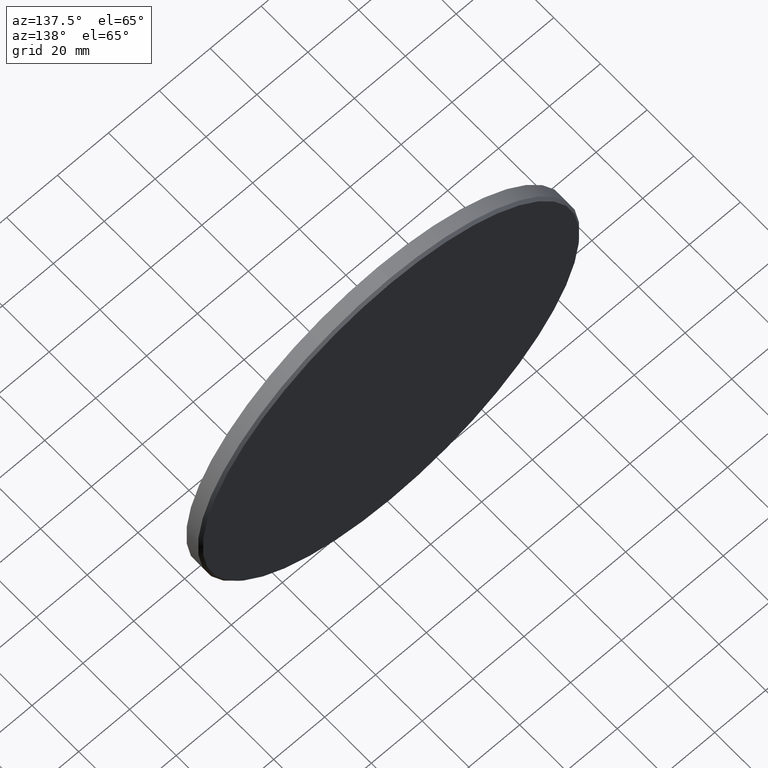
[diagram: clean part render]
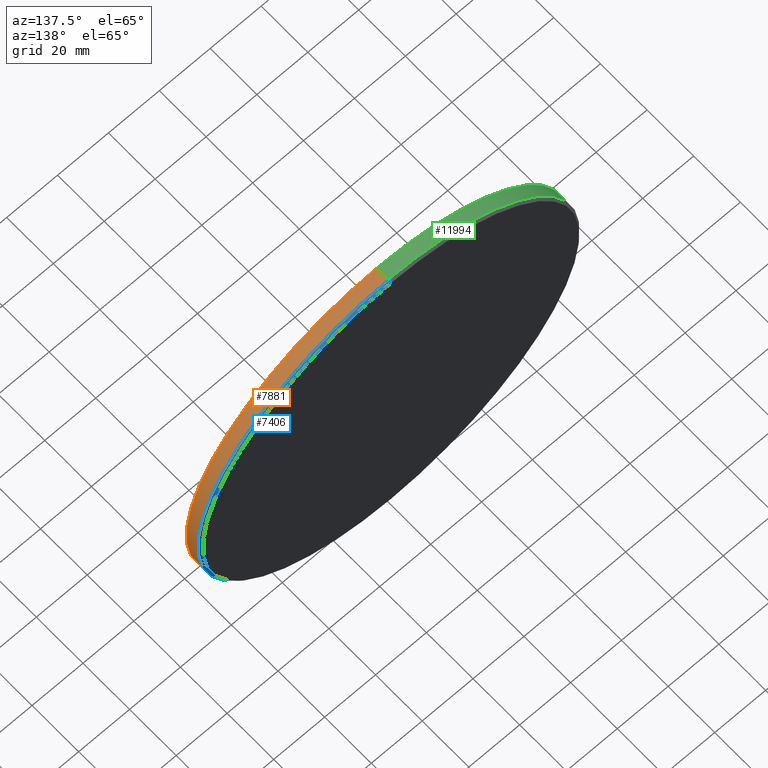
[diagram: same view with three faces highlighted in distinct colors, each labeled with its STEP entity id]
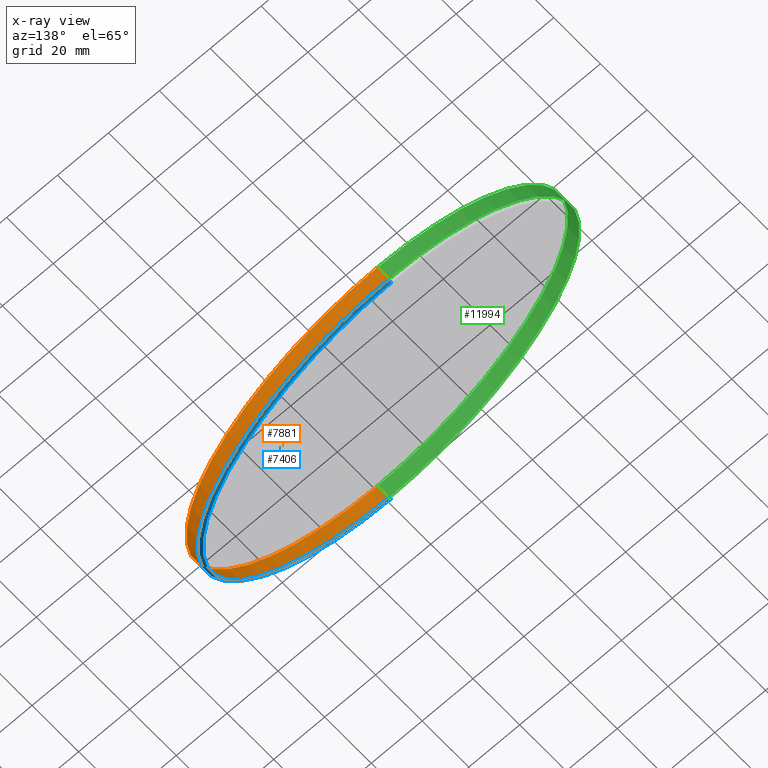
[diagram: x-ray of the same camera — body ghosted, the three highlighted faces saturated]
A machine part, auxiliary view with three faces highlighted in distinct colors.
The next image is the same camera in x-ray (body ghosted, the three faces saturated) — at least one of them is partly hidden behind the body in this view.
Their STEP definitions:

[orange] entity #7881 — the highlighted cylindrical surface (partial cylindrical patch) has radius 75 mm, axis along (-0, -1, -0).
#31 = DIRECTION ( 'NONE',  ( -0.000000000000000000, -1.000000000000000000, -0.000000000000000000 ) ) ;
#159 = ORIENTED_EDGE ( 'NONE', *, *, #959, .T. ) ;
#386 = CIRCLE ( 'NONE', #1774, 75.00000000000001421 ) ;
#724 = CARTESIAN_POINT ( 'NONE',  ( 0.000000000000000000, -3.000000000000000000, -75.00000000000001421 ) ) ;
#959 = EDGE_CURVE ( 'NONE', #5830, #2016, #386, .T. ) ;
#1470 = ORIENTED_EDGE ( 'NONE', *, *, #4376, .T. ) ;
#1581 = CARTESIAN_POINT ( 'NONE',  ( 0.000000000000000000, -3.000000000000000000, 0.000000000000000000 ) ) ;
#1774 = AXIS2_PLACEMENT_3D ( 'NONE', #11794, #5338, #8551 ) ;
#2016 = VERTEX_POINT ( 'NONE', #3464 ) ;
#2090 = LINE ( 'NONE', #3948, #9688 ) ;
#3177 = CARTESIAN_POINT ( 'NONE',  ( 0.000000000000000000, 3.000000000000000000, 0.000000000000000000 ) ) ;
#3464 = CARTESIAN_POINT ( 'NONE',  ( 9.184850993605150311E-15, 2.000000000000012879, 75.00000000000001421 ) ) ;
#3948 = CARTESIAN_POINT ( 'NONE',  ( 0.000000000000000000, 3.000000000000000000, -75.00000000000001421 ) ) ;
#4249 = AXIS2_PLACEMENT_3D ( 'NONE', #3177, #31, #9844 ) ;
#4376 = EDGE_CURVE ( 'NONE', #7229, #4633, #10716, .T. ) ;
#4633 = VERTEX_POINT ( 'NONE', #724 ) ;
#4654 = EDGE_CURVE ( 'NONE', #5830, #4633, #2090, .T. ) ;
#5338 = DIRECTION ( 'NONE',  ( 0.000000000000000000, -1.000000000000000000, 0.000000000000000000 ) ) ;
#5355 = AXIS2_PLACEMENT_3D ( 'NONE', #1581, #10463, #8237 ) ;
#5830 = VERTEX_POINT ( 'NONE', #11074 ) ;
#7229 = VERTEX_POINT ( 'NONE', #13252 ) ;
#7459 = ORIENTED_EDGE ( 'NONE', *, *, #8628, .T. ) ;
#7881 = ADVANCED_FACE ( 'NONE', ( #11885 ), #7903, .T. ) ;
#7903 = CYLINDRICAL_SURFACE ( 'NONE', #4249, 75.00000000000001421 ) ;
#8237 = DIRECTION ( 'NONE',  ( 0.000000000000000000, 0.000000000000000000, 1.000000000000000000 ) ) ;
#8551 = DIRECTION ( 'NONE',  ( 0.000000000000000000, 0.000000000000000000, 1.000000000000000000 ) ) ;
#8628 = EDGE_CURVE ( 'NONE', #2016, #7229, #10065, .T. ) ;
#8884 = CARTESIAN_POINT ( 'NONE',  ( 9.184850993605150311E-15, 3.000000000000000000, 75.00000000000001421 ) ) ;
#9013 = VECTOR ( 'NONE', #13344, 1000.000000000000000 ) ;
#9688 = VECTOR ( 'NONE', #12672, 1000.000000000000000 ) ;
#9844 = DIRECTION ( 'NONE',  ( 0.000000000000000000, 0.000000000000000000, -1.000000000000000000 ) ) ;
#10065 = LINE ( 'NONE', #8884, #9013 ) ;
#10269 = EDGE_LOOP ( 'NONE', ( #159, #7459, #1470, #12878 ) ) ;
#10463 = DIRECTION ( 'NONE',  ( 0.000000000000000000, 1.000000000000000000, 0.000000000000000000 ) ) ;
#10716 = CIRCLE ( 'NONE', #5355, 75.00000000000001421 ) ;
#11074 = CARTESIAN_POINT ( 'NONE',  ( 0.000000000000000000, 2.000000000000012879, -75.00000000000001421 ) ) ;
#11794 = CARTESIAN_POINT ( 'NONE',  ( 0.000000000000000000, 2.000000000000012879, 0.000000000000000000 ) ) ;
#11885 = FACE_OUTER_BOUND ( 'NONE', #10269, .T. ) ;
#12672 = DIRECTION ( 'NONE',  ( -0.000000000000000000, -1.000000000000000000, -0.000000000000000000 ) ) ;
#12878 = ORIENTED_EDGE ( 'NONE', *, *, #4654, .F. ) ;
#13252 = CARTESIAN_POINT ( 'NONE',  ( 9.184850993605150311E-15, -3.000000000000000000, 75.00000000000001421 ) ) ;
#13344 = DIRECTION ( 'NONE',  ( -0.000000000000000000, -1.000000000000000000, -0.000000000000000000 ) ) ;

[blue] entity #7406 — the highlighted conical surface has half-angle 45 deg.
#191 = DIRECTION ( 'NONE',  ( 0.000000000000000000, -1.000000000000000000, 0.000000000000000000 ) ) ;
#386 = CIRCLE ( 'NONE', #1774, 75.00000000000001421 ) ;
#564 = CARTESIAN_POINT ( 'NONE',  ( 9.123618653647782737E-15, 3.000000000000000000, 74.00000000000001421 ) ) ;
#959 = EDGE_CURVE ( 'NONE', #5830, #2016, #386, .T. ) ;
#1026 = CARTESIAN_POINT ( 'NONE',  ( 0.000000000000000000, 3.000000000000000000, -74.00000000000001421 ) ) ;
#1263 = CARTESIAN_POINT ( 'NONE',  ( 0.000000000000000000, 3.000000000000000000, 0.000000000000000000 ) ) ;
#1774 = AXIS2_PLACEMENT_3D ( 'NONE', #11794, #5338, #8551 ) ;
#2016 = VERTEX_POINT ( 'NONE', #3464 ) ;
#3195 = DIRECTION ( 'NONE',  ( 0.000000000000000000, -0.7071067811865426878, -0.7071067811865524577 ) ) ;
#3218 = ORIENTED_EDGE ( 'NONE', *, *, #12882, .F. ) ;
#3464 = CARTESIAN_POINT ( 'NONE',  ( 9.184850993605150311E-15, 2.000000000000012879, 75.00000000000001421 ) ) ;
#3575 = VECTOR ( 'NONE', #3195, 1000.000000000000000 ) ;
#3578 = DIRECTION ( 'NONE',  ( 0.000000000000000000, 1.000000000000000000, 0.000000000000000000 ) ) ;
#3859 = EDGE_LOOP ( 'NONE', ( #4717, #8539, #7892, #3218 ) ) ;
#4717 = ORIENTED_EDGE ( 'NONE', *, *, #14315, .F. ) ;
#5338 = DIRECTION ( 'NONE',  ( 0.000000000000000000, -1.000000000000000000, 0.000000000000000000 ) ) ;
#5622 = CARTESIAN_POINT ( 'NONE',  ( 0.000000000000000000, 3.000000000000000000, 0.000000000000000000 ) ) ;
#5678 = CONICAL_SURFACE ( 'NONE', #13611, 74.00000000000001421, 0.7853981633974552734 ) ;
#5684 = VECTOR ( 'NONE', #13641, 1000.000000000000000 ) ;
#5830 = VERTEX_POINT ( 'NONE', #11074 ) ;
#6859 = DIRECTION ( 'NONE',  ( 0.000000000000000000, 0.000000000000000000, -1.000000000000000000 ) ) ;
#7380 = FACE_OUTER_BOUND ( 'NONE', #3859, .T. ) ;
#7406 = ADVANCED_FACE ( 'NONE', ( #7380 ), #5678, .T. ) ;
#7892 = ORIENTED_EDGE ( 'NONE', *, *, #959, .F. ) ;
#8539 = ORIENTED_EDGE ( 'NONE', *, *, #11484, .T. ) ;
#8551 = DIRECTION ( 'NONE',  ( 0.000000000000000000, 0.000000000000000000, 1.000000000000000000 ) ) ;
#9088 = DIRECTION ( 'NONE',  ( 0.000000000000000000, 0.000000000000000000, 1.000000000000000000 ) ) ;
#9132 = LINE ( 'NONE', #13680, #5684 ) ;
#9172 = AXIS2_PLACEMENT_3D ( 'NONE', #5622, #3578, #9088 ) ;
#9570 = VERTEX_POINT ( 'NONE', #564 ) ;
#9806 = LINE ( 'NONE', #1026, #3575 ) ;
#11074 = CARTESIAN_POINT ( 'NONE',  ( 0.000000000000000000, 2.000000000000012879, -75.00000000000001421 ) ) ;
#11409 = CARTESIAN_POINT ( 'NONE',  ( 0.000000000000000000, 3.000000000000000000, -74.00000000000001421 ) ) ;
#11484 = EDGE_CURVE ( 'NONE', #9570, #2016, #9132, .T. ) ;
#11794 = CARTESIAN_POINT ( 'NONE',  ( 0.000000000000000000, 2.000000000000012879, 0.000000000000000000 ) ) ;
#12882 = EDGE_CURVE ( 'NONE', #13223, #5830, #9806, .T. ) ;
#13223 = VERTEX_POINT ( 'NONE', #11409 ) ;
#13611 = AXIS2_PLACEMENT_3D ( 'NONE', #1263, #191, #6859 ) ;
#13641 = DIRECTION ( 'NONE',  ( 8.659560562354994488E-17, -0.7071067811865426878, 0.7071067811865524577 ) ) ;
#13680 = CARTESIAN_POINT ( 'NONE',  ( 9.062386313690415163E-15, 3.000000000000000000, 74.00000000000001421 ) ) ;
#14283 = CIRCLE ( 'NONE', #9172, 74.00000000000001421 ) ;
#14315 = EDGE_CURVE ( 'NONE', #9570, #13223, #14283, .T. ) ;

[green] entity #11994 — the highlighted cylindrical surface (partial cylindrical patch) has radius 75 mm, axis along (-0, -1, -0).
#201 = CARTESIAN_POINT ( 'NONE',  ( 0.000000000000000000, -3.000000000000000000, 0.000000000000000000 ) ) ;
#327 = DIRECTION ( 'NONE',  ( -0.000000000000000000, -1.000000000000000000, -0.000000000000000000 ) ) ;
#724 = CARTESIAN_POINT ( 'NONE',  ( 0.000000000000000000, -3.000000000000000000, -75.00000000000001421 ) ) ;
#2016 = VERTEX_POINT ( 'NONE', #3464 ) ;
#2090 = LINE ( 'NONE', #3948, #9688 ) ;
#2526 = AXIS2_PLACEMENT_3D ( 'NONE', #13177, #7810, #8768 ) ;
#3274 = AXIS2_PLACEMENT_3D ( 'NONE', #12471, #327, #8051 ) ;
#3464 = CARTESIAN_POINT ( 'NONE',  ( 9.184850993605150311E-15, 2.000000000000012879, 75.00000000000001421 ) ) ;
#3615 = AXIS2_PLACEMENT_3D ( 'NONE', #201, #11376, #12440 ) ;
#3948 = CARTESIAN_POINT ( 'NONE',  ( 0.000000000000000000, 3.000000000000000000, -75.00000000000001421 ) ) ;
#4633 = VERTEX_POINT ( 'NONE', #724 ) ;
#4654 = EDGE_CURVE ( 'NONE', #5830, #4633, #2090, .T. ) ;
#5593 = ORIENTED_EDGE ( 'NONE', *, *, #8628, .F. ) ;
#5830 = VERTEX_POINT ( 'NONE', #11074 ) ;
#6657 = ORIENTED_EDGE ( 'NONE', *, *, #10593, .T. ) ;
#7229 = VERTEX_POINT ( 'NONE', #13252 ) ;
#7810 = DIRECTION ( 'NONE',  ( 0.000000000000000000, -1.000000000000000000, 0.000000000000000000 ) ) ;
#8051 = DIRECTION ( 'NONE',  ( 0.000000000000000000, 0.000000000000000000, -1.000000000000000000 ) ) ;
#8628 = EDGE_CURVE ( 'NONE', #2016, #7229, #10065, .T. ) ;
#8768 = DIRECTION ( 'NONE',  ( 0.000000000000000000, 0.000000000000000000, 1.000000000000000000 ) ) ;
#8884 = CARTESIAN_POINT ( 'NONE',  ( 9.184850993605150311E-15, 3.000000000000000000, 75.00000000000001421 ) ) ;
#9013 = VECTOR ( 'NONE', #13344, 1000.000000000000000 ) ;
#9688 = VECTOR ( 'NONE', #12672, 1000.000000000000000 ) ;
#10065 = LINE ( 'NONE', #8884, #9013 ) ;
#10593 = EDGE_CURVE ( 'NONE', #4633, #7229, #13803, .T. ) ;
#11074 = CARTESIAN_POINT ( 'NONE',  ( 0.000000000000000000, 2.000000000000012879, -75.00000000000001421 ) ) ;
#11196 = EDGE_LOOP ( 'NONE', ( #5593, #12423, #13100, #6657 ) ) ;
#11303 = EDGE_CURVE ( 'NONE', #2016, #5830, #13132, .T. ) ;
#11376 = DIRECTION ( 'NONE',  ( 0.000000000000000000, 1.000000000000000000, 0.000000000000000000 ) ) ;
#11994 = ADVANCED_FACE ( 'NONE', ( #12599 ), #13948, .T. ) ;
#12423 = ORIENTED_EDGE ( 'NONE', *, *, #11303, .T. ) ;
#12440 = DIRECTION ( 'NONE',  ( 0.000000000000000000, 0.000000000000000000, 1.000000000000000000 ) ) ;
#12471 = CARTESIAN_POINT ( 'NONE',  ( 0.000000000000000000, 3.000000000000000000, 0.000000000000000000 ) ) ;
#12599 = FACE_OUTER_BOUND ( 'NONE', #11196, .T. ) ;
#12672 = DIRECTION ( 'NONE',  ( -0.000000000000000000, -1.000000000000000000, -0.000000000000000000 ) ) ;
#13100 = ORIENTED_EDGE ( 'NONE', *, *, #4654, .T. ) ;
#13132 = CIRCLE ( 'NONE', #2526, 75.00000000000001421 ) ;
#13177 = CARTESIAN_POINT ( 'NONE',  ( 0.000000000000000000, 2.000000000000012879, 0.000000000000000000 ) ) ;
#13252 = CARTESIAN_POINT ( 'NONE',  ( 9.184850993605150311E-15, -3.000000000000000000, 75.00000000000001421 ) ) ;
#13344 = DIRECTION ( 'NONE',  ( -0.000000000000000000, -1.000000000000000000, -0.000000000000000000 ) ) ;
#13803 = CIRCLE ( 'NONE', #3615, 75.00000000000001421 ) ;
#13948 = CYLINDRICAL_SURFACE ( 'NONE', #3274, 75.00000000000001421 ) ;